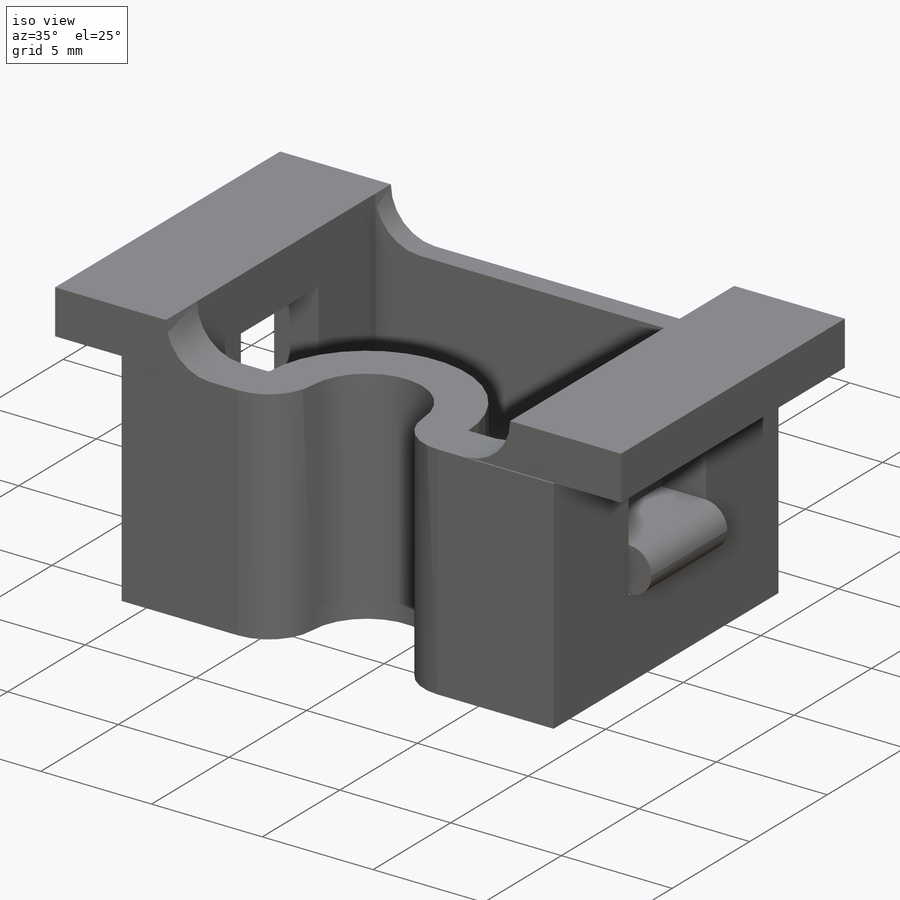
[diagram: iso view]
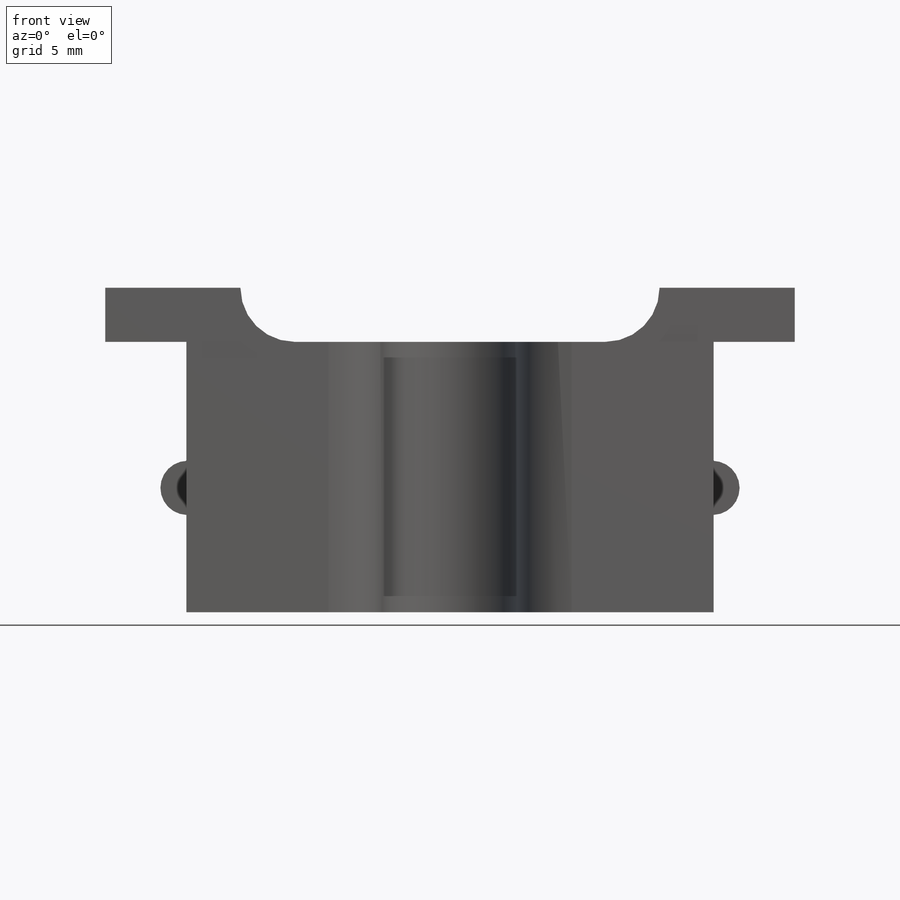
[diagram: front view]
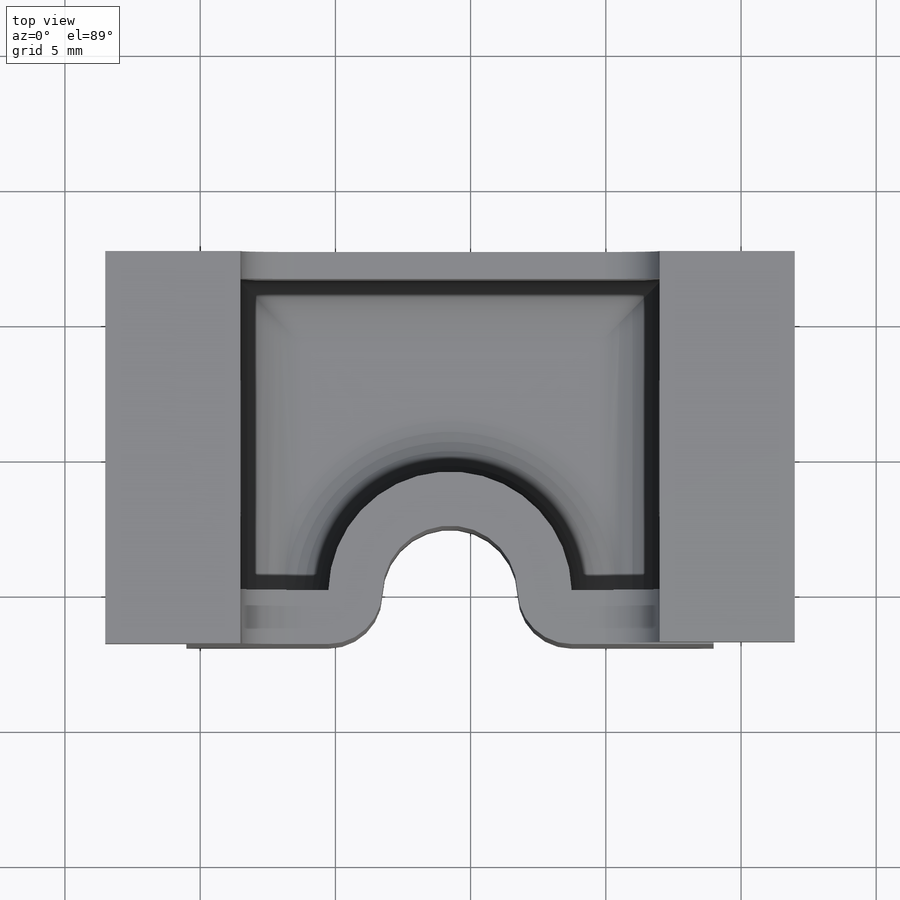
[diagram: top view]
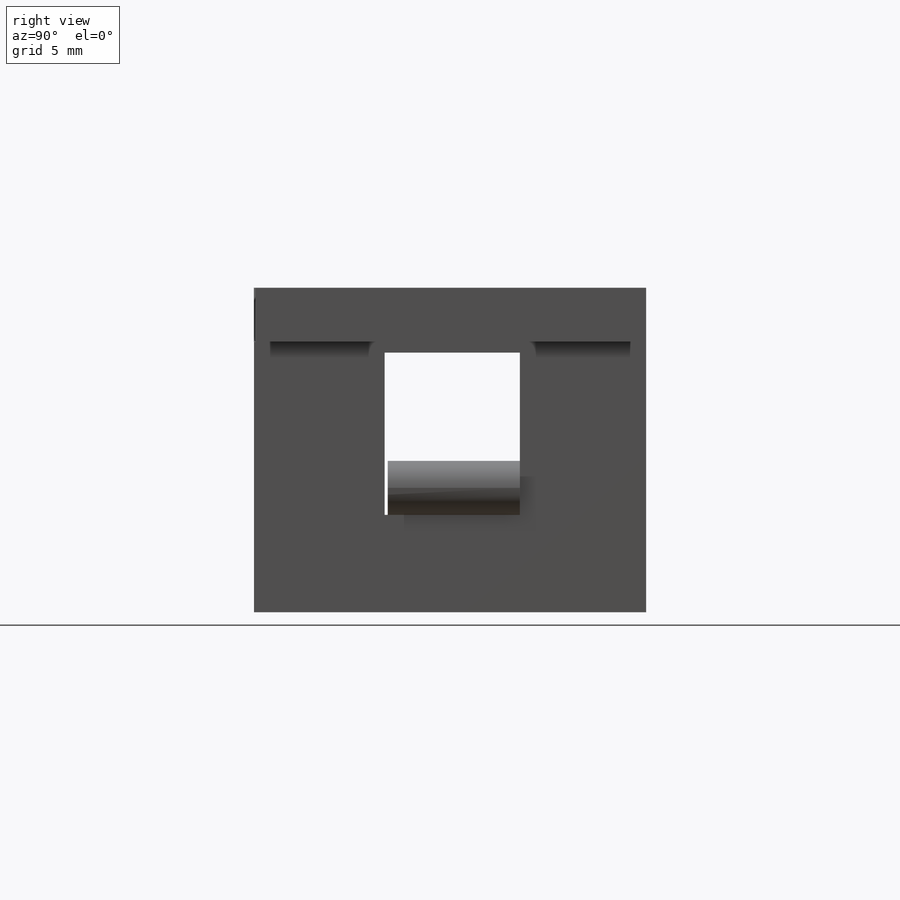
[diagram: right view]
SOLIDWORKS PART (.sldprt)
format: sldprt  version: not decoded by parser v0  size: 326,656 bytes
history: native  units: mm
features: sketch x6, fillet x5, extrude x3, cut_extrude x3, material x1, shell x1 (+13 scaffold rows collapsed)
feature tree (32):
  scaffold x13  (default folders/planes/origin — collapsed)
  material  "Material <not specified>"
  sketch  "Sketch1"  dims[D1=19.5mm D2=14.5mm]
  extrude  "Boss-Extrude1"  Depth=10mm
  sketch  "Sketch2"  dims[D1=4.5mm]
  cut_extrude  "Cut-Extrude1"  Depth=10mm
  shell  "Shell1"  Thickness=2mm
  fillet  "Fillet1"  Radius=2mm
  sketch  "Sketch3"  dims[D1=1.0mm]
  cut_extrude  "Cut-Extrude3"  Depth=8mm
  fillet  "Fillet2"  Radius=2mm
  sketch  "Sketch4"  dims[D1=5.0mm D2=5.0mm]
  extrude  "Boss-Extrude2"  Depth=2mm
  fillet  "Fillet3"  Radius=2mm
  fillet  "Fillet4"  Radius=2mm
  sketch  "Sketch5"  dims[D1=6.0mm D2=5.0mm]
  cut_extrude  "Cut-Extrude4"  Depth=22mm
  sketch  "Sketch6"  dims[D1=3.0mm D2=3.0mm]
  extrude  "Boss-Extrude3"  Depth=2mm
  fillet  "Fillet5"  Radius=1mm
decode coverage: 18 of 18 modeling features carry decoded parameters
note: suppression state not decoded; provenance and decode notes live in map.json
